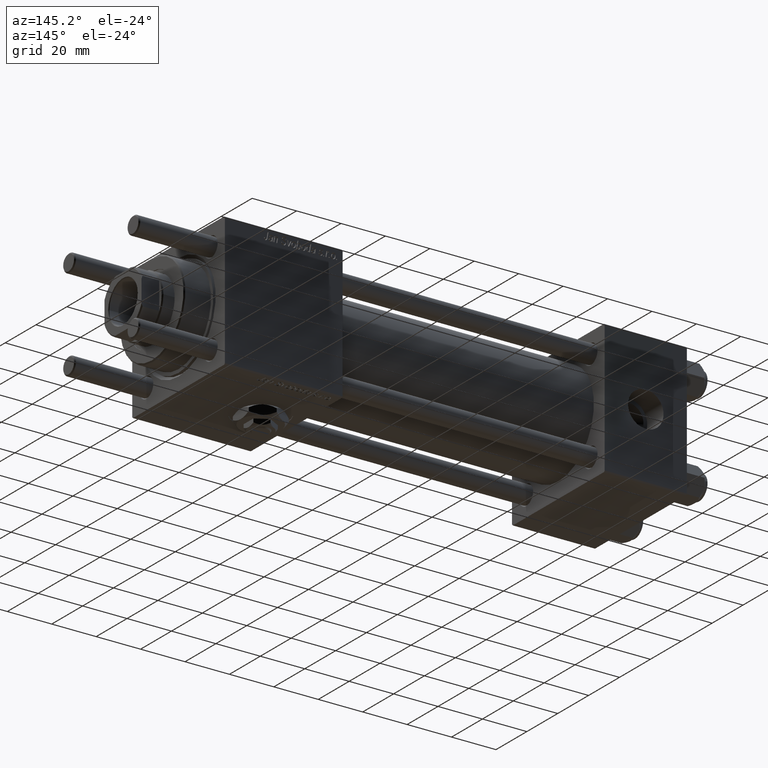
[diagram: clean part render]
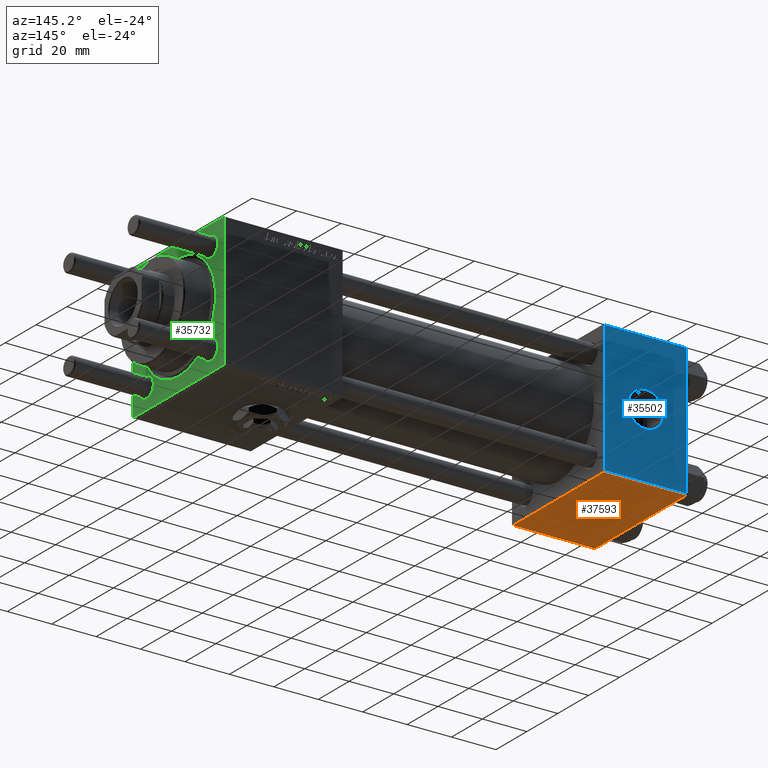
[diagram: same view with three faces highlighted in distinct colors, each labeled with its STEP entity id]
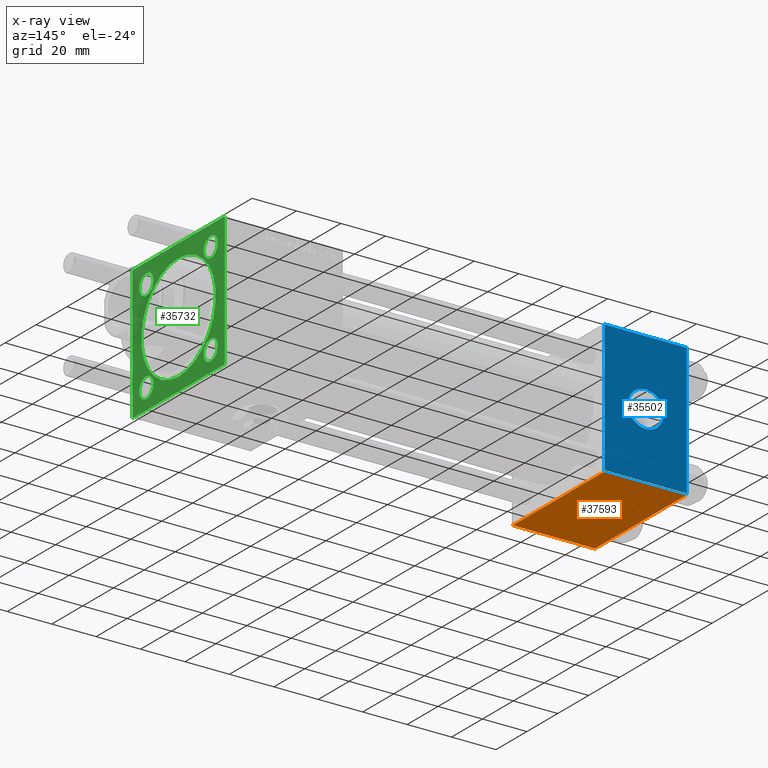
[diagram: x-ray of the same camera — body ghosted, the three highlighted faces saturated]
A machine part, auxiliary view with three faces highlighted in distinct colors.
The next image is the same camera in x-ray (body ghosted, the three faces saturated) — at least one of them is partly hidden behind the body in this view.
Their STEP definitions:

[orange] entity #37593 — the highlighted planar face has unit normal (0, 0, -1).
#434 = VECTOR ( 'NONE', #30476, 1000.000000000000000 ) ;
#3581 = CARTESIAN_POINT ( 'NONE',  ( 0.000000000000000000, -29.50000000000000000, -30.00000000000000711 ) ) ;
#4893 = EDGE_CURVE ( 'NONE', #53085, #26064, #10908, .T. ) ;
#5900 = EDGE_CURVE ( 'NONE', #34262, #53085, #8115, .T. ) ;
#6168 = CARTESIAN_POINT ( 'NONE',  ( 37.00000000000000000, 29.99999999999999289, -30.00000000000000000 ) ) ;
#8115 = LINE ( 'NONE', #39812, #40509 ) ;
#10190 = VECTOR ( 'NONE', #41424, 1000.000000000000000 ) ;
#10383 = ORIENTED_EDGE ( 'NONE', *, *, #49552, .T. ) ;
#10908 = LINE ( 'NONE', #6168, #10190 ) ;
#11958 = CARTESIAN_POINT ( 'NONE',  ( 37.00000000000000000, 29.99999999999999289, -30.00000000000000000 ) ) ;
#12411 = CARTESIAN_POINT ( 'NONE',  ( 0.000000000000000000, 29.99999999999999289, -30.00000000000000000 ) ) ;
#13536 = VERTEX_POINT ( 'NONE', #3581 ) ;
#14063 = CARTESIAN_POINT ( 'NONE',  ( 37.00000000000000000, -29.50000000000000000, -30.00000000000000711 ) ) ;
#16708 = DIRECTION ( 'NONE',  ( 0.000000000000000000, 1.000000000000000000, 1.156482317317871725E-16 ) ) ;
#20952 = CARTESIAN_POINT ( 'NONE',  ( 0.000000000000000000, 29.49999999999997868, -30.00000000000000000 ) ) ;
#26064 = VERTEX_POINT ( 'NONE', #14063 ) ;
#26327 = LINE ( 'NONE', #12411, #434 ) ;
#29336 = ORIENTED_EDGE ( 'NONE', *, *, #4893, .T. ) ;
#29658 = DIRECTION ( 'NONE',  ( -1.000000000000000000, 0.000000000000000000, 0.000000000000000000 ) ) ;
#30389 = EDGE_LOOP ( 'NONE', ( #55534, #46108, #29336, #10383 ) ) ;
#30476 = DIRECTION ( 'NONE',  ( 0.000000000000000000, -1.000000000000000000, -1.156482317317871725E-16 ) ) ;
#34104 = CARTESIAN_POINT ( 'NONE',  ( 0.000000000000000000, -29.50000000000001066, -30.00000000000000711 ) ) ;
#34262 = VERTEX_POINT ( 'NONE', #20952 ) ;
#36609 = CARTESIAN_POINT ( 'NONE',  ( 37.00000000000000000, 29.49999999999997868, -30.00000000000000000 ) ) ;
#37593 = ADVANCED_FACE ( 'NONE', ( #46929 ), #52532, .T. ) ;
#38954 = DIRECTION ( 'NONE',  ( 1.000000000000000000, 0.000000000000000000, 0.000000000000000000 ) ) ;
#39812 = CARTESIAN_POINT ( 'NONE',  ( 37.00000000000000000, 29.49999999999997868, -30.00000000000000000 ) ) ;
#40232 = VECTOR ( 'NONE', #29658, 1000.000000000000000 ) ;
#40509 = VECTOR ( 'NONE', #38954, 1000.000000000000000 ) ;
#41424 = DIRECTION ( 'NONE',  ( 0.000000000000000000, -1.000000000000000000, -1.156482317317871725E-16 ) ) ;
#42096 = LINE ( 'NONE', #34104, #40232 ) ;
#43078 = DIRECTION ( 'NONE',  ( 0.000000000000000000, 1.156482317317871725E-16, -1.000000000000000000 ) ) ;
#46108 = ORIENTED_EDGE ( 'NONE', *, *, #5900, .T. ) ;
#46929 = FACE_OUTER_BOUND ( 'NONE', #30389, .T. ) ;
#48022 = EDGE_CURVE ( 'NONE', #34262, #13536, #26327, .T. ) ;
#49552 = EDGE_CURVE ( 'NONE', #26064, #13536, #42096, .T. ) ;
#52532 = PLANE ( 'NONE',  #54153 ) ;
#53085 = VERTEX_POINT ( 'NONE', #36609 ) ;
#54153 = AXIS2_PLACEMENT_3D ( 'NONE', #11958, #43078, #16708 ) ;
#55534 = ORIENTED_EDGE ( 'NONE', *, *, #48022, .F. ) ;

[blue] entity #35502 — the highlighted planar face has unit normal (0, 1, 0).
#420 = CARTESIAN_POINT ( 'NONE',  ( 0.000000000000000000, 29.99999999999999289, 29.50000000000000000 ) ) ;
#516 = VECTOR ( 'NONE', #57181, 1000.000000000000000 ) ;
#2246 = VERTEX_POINT ( 'NONE', #420 ) ;
#2696 = CARTESIAN_POINT ( 'NONE',  ( 0.000000000000000000, 29.99999999999999289, 30.00000000000000000 ) ) ;
#3664 = CARTESIAN_POINT ( 'NONE',  ( 18.50000000000000000, 29.99999999999999289, 0.000000000000000000 ) ) ;
#4757 = DIRECTION ( 'NONE',  ( -0.000000000000000000, 1.000000000000000000, 0.000000000000000000 ) ) ;
#5046 = CARTESIAN_POINT ( 'NONE',  ( 0.000000000000000000, 29.99999999999999289, -29.50000000000000000 ) ) ;
#7288 = CARTESIAN_POINT ( 'NONE',  ( 37.00000000000000000, 29.99999999999999289, -29.50000000000000000 ) ) ;
#7443 = EDGE_CURVE ( 'NONE', #2246, #18409, #38537, .T. ) ;
#8102 = CIRCLE ( 'NONE', #40286, 8.000000000000001776 ) ;
#8243 = CARTESIAN_POINT ( 'NONE',  ( 37.00000000000000000, 29.99999999999999289, -29.50000000000000000 ) ) ;
#8281 = CARTESIAN_POINT ( 'NONE',  ( 37.00000000000000000, 29.99999999999999289, 30.00000000000000000 ) ) ;
#8384 = DIRECTION ( 'NONE',  ( 0.000000000000000000, 1.000000000000000000, 0.000000000000000000 ) ) ;
#8902 = FACE_BOUND ( 'NONE', #25651, .T. ) ;
#9486 = FACE_OUTER_BOUND ( 'NONE', #45436, .T. ) ;
#10067 = CARTESIAN_POINT ( 'NONE',  ( 37.00000000000000000, 29.99999999999999289, 30.00000000000000000 ) ) ;
#10538 = DIRECTION ( 'NONE',  ( 0.000000000000000000, 0.000000000000000000, 1.000000000000000000 ) ) ;
#12451 = DIRECTION ( 'NONE',  ( 0.000000000000000000, 0.000000000000000000, -1.000000000000000000 ) ) ;
#13021 = ORIENTED_EDGE ( 'NONE', *, *, #49631, .T. ) ;
#15436 = VERTEX_POINT ( 'NONE', #8243 ) ;
#16644 = VECTOR ( 'NONE', #21486, 1000.000000000000000 ) ;
#16763 = DIRECTION ( 'NONE',  ( 1.000000000000000000, 0.000000000000000000, 0.000000000000000000 ) ) ;
#18349 = CARTESIAN_POINT ( 'NONE',  ( 18.50000000000000000, 29.99999999999999289, 8.000000000000001776 ) ) ;
#18409 = VERTEX_POINT ( 'NONE', #5046 ) ;
#21486 = DIRECTION ( 'NONE',  ( -1.000000000000000000, 0.000000000000000000, 0.000000000000000000 ) ) ;
#22184 = CARTESIAN_POINT ( 'NONE',  ( 18.50000000000000000, 29.99999999999999289, -8.000000000000001776 ) ) ;
#22835 = VERTEX_POINT ( 'NONE', #22184 ) ;
#24186 = CARTESIAN_POINT ( 'NONE',  ( 18.50000000000000000, 29.99999999999999289, 0.000000000000000000 ) ) ;
#25651 = EDGE_LOOP ( 'NONE', ( #55987, #26077 ) ) ;
#26077 = ORIENTED_EDGE ( 'NONE', *, *, #51687, .F. ) ;
#26560 = VECTOR ( 'NONE', #16763, 1000.000000000000000 ) ;
#30630 = DIRECTION ( 'NONE',  ( 0.000000000000000000, 0.000000000000000000, 1.000000000000000000 ) ) ;
#31238 = EDGE_CURVE ( 'NONE', #2246, #51775, #39261, .T. ) ;
#32594 = PLANE ( 'NONE',  #48423 ) ;
#34546 = LINE ( 'NONE', #7288, #16644 ) ;
#35502 = ADVANCED_FACE ( 'NONE', ( #8902, #9486 ), #32594, .T. ) ;
#35703 = ORIENTED_EDGE ( 'NONE', *, *, #7443, .F. ) ;
#37154 = VERTEX_POINT ( 'NONE', #18349 ) ;
#38209 = CARTESIAN_POINT ( 'NONE',  ( 37.00000000000000000, 29.99999999999999289, 29.50000000000000000 ) ) ;
#38537 = LINE ( 'NONE', #2696, #47203 ) ;
#39261 = LINE ( 'NONE', #57321, #26560 ) ;
#39686 = LINE ( 'NONE', #8281, #516 ) ;
#40286 = AXIS2_PLACEMENT_3D ( 'NONE', #3664, #8384, #30630 ) ;
#45436 = EDGE_LOOP ( 'NONE', ( #13021, #46152, #35703, #54092 ) ) ;
#45633 = DIRECTION ( 'NONE',  ( 0.000000000000000000, -0.000000000000000000, 1.000000000000000000 ) ) ;
#46038 = AXIS2_PLACEMENT_3D ( 'NONE', #24186, #51113, #10538 ) ;
#46152 = ORIENTED_EDGE ( 'NONE', *, *, #50211, .T. ) ;
#47203 = VECTOR ( 'NONE', #12451, 1000.000000000000000 ) ;
#48423 = AXIS2_PLACEMENT_3D ( 'NONE', #10067, #4757, #45633 ) ;
#49631 = EDGE_CURVE ( 'NONE', #51775, #15436, #39686, .T. ) ;
#50211 = EDGE_CURVE ( 'NONE', #15436, #18409, #34546, .T. ) ;
#51113 = DIRECTION ( 'NONE',  ( 0.000000000000000000, 1.000000000000000000, 0.000000000000000000 ) ) ;
#51687 = EDGE_CURVE ( 'NONE', #22835, #37154, #8102, .T. ) ;
#51775 = VERTEX_POINT ( 'NONE', #38209 ) ;
#54092 = ORIENTED_EDGE ( 'NONE', *, *, #31238, .T. ) ;
#54978 = EDGE_CURVE ( 'NONE', #37154, #22835, #57413, .T. ) ;
#55987 = ORIENTED_EDGE ( 'NONE', *, *, #54978, .F. ) ;
#57181 = DIRECTION ( 'NONE',  ( 0.000000000000000000, 0.000000000000000000, -1.000000000000000000 ) ) ;
#57321 = CARTESIAN_POINT ( 'NONE',  ( 37.00000000000000000, 29.99999999999999289, 29.50000000000000000 ) ) ;
#57413 = CIRCLE ( 'NONE', #46038, 8.000000000000001776 ) ;

[green] entity #35732 — the highlighted planar face has unit normal (-1, 0, 0).
#165 = DIRECTION ( 'NONE',  ( 0.000000000000000000, 0.000000000000000000, 1.000000000000000000 ) ) ;
#723 = CARTESIAN_POINT ( 'NONE',  ( 208.0000000000000000, -29.50000000000002487, 29.99999999999999289 ) ) ;
#1127 = DIRECTION ( 'NONE',  ( -0.000000000000000000, 0.000000000000000000, 1.000000000000000000 ) ) ;
#1376 = EDGE_LOOP ( 'NONE', ( #56399, #43650 ) ) ;
#2663 = DIRECTION ( 'NONE',  ( -1.000000000000000000, 0.000000000000000000, -0.000000000000000000 ) ) ;
#3550 = ORIENTED_EDGE ( 'NONE', *, *, #18855, .T. ) ;
#3845 = CARTESIAN_POINT ( 'NONE',  ( 208.0000000000000000, -20.84999999999999076, 20.85000000000000497 ) ) ;
#4142 = AXIS2_PLACEMENT_3D ( 'NONE', #32575, #33467, #28137 ) ;
#4244 = DIRECTION ( 'NONE',  ( -0.000000000000000000, -0.7071067811865474617, -0.7071067811865474617 ) ) ;
#4543 = CARTESIAN_POINT ( 'NONE',  ( 208.0000000000000000, 30.00000000000000000, -29.99999999999999289 ) ) ;
#4663 = DIRECTION ( 'NONE',  ( -1.000000000000000000, 0.000000000000000000, -0.000000000000000000 ) ) ;
#5628 = VECTOR ( 'NONE', #46491, 1000.000000000000114 ) ;
#5960 = VECTOR ( 'NONE', #51638, 1000.000000000000000 ) ;
#5964 = ORIENTED_EDGE ( 'NONE', *, *, #19663, .T. ) ;
#6772 = CIRCLE ( 'NONE', #49283, 24.00000000000002487 ) ;
#6805 = DIRECTION ( 'NONE',  ( -1.000000000000000000, 0.000000000000000000, -0.000000000000000000 ) ) ;
#6896 = DIRECTION ( 'NONE',  ( 0.000000000000000000, 0.000000000000000000, -1.000000000000000000 ) ) ;
#7528 = EDGE_CURVE ( 'NONE', #8577, #55214, #32987, .T. ) ;
#8577 = VERTEX_POINT ( 'NONE', #39810 ) ;
#8795 = ORIENTED_EDGE ( 'NONE', *, *, #15336, .T. ) ;
#8818 = CIRCLE ( 'NONE', #4142, 4.500000000000003553 ) ;
#10066 = EDGE_LOOP ( 'NONE', ( #5964, #28938 ) ) ;
#10954 = DIRECTION ( 'NONE',  ( 0.000000000000000000, 0.000000000000000000, 1.000000000000000000 ) ) ;
#12127 = CARTESIAN_POINT ( 'NONE',  ( 208.0000000000000000, 0.000000000000000000, 0.000000000000000000 ) ) ;
#12422 = VERTEX_POINT ( 'NONE', #34979 ) ;
#12426 = CARTESIAN_POINT ( 'NONE',  ( 208.0000000000000000, -30.00000000000000000, 29.99999999999999289 ) ) ;
#12933 = VERTEX_POINT ( 'NONE', #46930 ) ;
#13418 = DIRECTION ( 'NONE',  ( 0.000000000000000000, -1.000000000000000000, -1.156482317317871478E-16 ) ) ;
#13509 = CARTESIAN_POINT ( 'NONE',  ( 208.0000000000000000, -20.84999999999999076, -25.35000000000000853 ) ) ;
#13723 = LINE ( 'NONE', #53992, #15873 ) ;
#14185 = VERTEX_POINT ( 'NONE', #42723 ) ;
#14215 = AXIS2_PLACEMENT_3D ( 'NONE', #46186, #14499, #54780 ) ;
#14386 = DIRECTION ( 'NONE',  ( 0.000000000000000000, 0.7071067811865474617, -0.7071067811865474617 ) ) ;
#14499 = DIRECTION ( 'NONE',  ( -1.000000000000000000, 0.000000000000000000, -0.000000000000000000 ) ) ;
#14754 = FACE_BOUND ( 'NONE', #38107, .T. ) ;
#15115 = CARTESIAN_POINT ( 'NONE',  ( 208.0000000000000000, -20.84999999999999076, -20.85000000000000497 ) ) ;
#15169 = EDGE_CURVE ( 'NONE', #34388, #55337, #23634, .T. ) ;
#15336 = EDGE_CURVE ( 'NONE', #55337, #34388, #31194, .T. ) ;
#15873 = VECTOR ( 'NONE', #4244, 1000.000000000000114 ) ;
#16451 = FACE_BOUND ( 'NONE', #10066, .T. ) ;
#16555 = EDGE_CURVE ( 'NONE', #51103, #55141, #36908, .T. ) ;
#16811 = EDGE_CURVE ( 'NONE', #45069, #52674, #32198, .T. ) ;
#18480 = AXIS2_PLACEMENT_3D ( 'NONE', #30023, #25882, #56967 ) ;
#18855 = EDGE_CURVE ( 'NONE', #56944, #31825, #54957, .T. ) ;
#19106 = CARTESIAN_POINT ( 'NONE',  ( 208.0000000000000000, 29.50000000000000000, -29.99999999999999289 ) ) ;
#19488 = FACE_BOUND ( 'NONE', #32610, .T. ) ;
#19663 = EDGE_CURVE ( 'NONE', #53945, #46261, #6772, .T. ) ;
#20831 = ORIENTED_EDGE ( 'NONE', *, *, #38526, .T. ) ;
#21009 = CARTESIAN_POINT ( 'NONE',  ( 208.0000000000000000, 20.84999999999999787, -25.35000000000000497 ) ) ;
#21598 = CARTESIAN_POINT ( 'NONE',  ( 208.0000000000000000, 0.000000000000000000, -24.00000000000002487 ) ) ;
#22026 = AXIS2_PLACEMENT_3D ( 'NONE', #40434, #58489, #165 ) ;
#22272 = EDGE_CURVE ( 'NONE', #45069, #31825, #31499, .T. ) ;
#23028 = CARTESIAN_POINT ( 'NONE',  ( 208.0000000000000000, 30.00000000000000000, -29.49999999999999289 ) ) ;
#23569 = CARTESIAN_POINT ( 'NONE',  ( 208.0000000000000000, -29.50000000000002487, -30.00000000000000000 ) ) ;
#23634 = CIRCLE ( 'NONE', #52969, 4.500000000000003553 ) ;
#23641 = FACE_BOUND ( 'NONE', #1376, .T. ) ;
#23860 = AXIS2_PLACEMENT_3D ( 'NONE', #38951, #28673, #1127 ) ;
#23959 = EDGE_LOOP ( 'NONE', ( #30743, #44265 ) ) ;
#24393 = LINE ( 'NONE', #12426, #40366 ) ;
#24407 = VERTEX_POINT ( 'NONE', #41217 ) ;
#24586 = CARTESIAN_POINT ( 'NONE',  ( 208.0000000000000000, 29.50000000000002487, 30.00000000000000000 ) ) ;
#25462 = EDGE_CURVE ( 'NONE', #12422, #52674, #51347, .T. ) ;
#25882 = DIRECTION ( 'NONE',  ( -1.000000000000000000, 0.000000000000000000, -0.000000000000000000 ) ) ;
#26087 = CARTESIAN_POINT ( 'NONE',  ( 208.0000000000000000, 30.00000000000000000, 30.00000000000000000 ) ) ;
#27865 = CIRCLE ( 'NONE', #32591, 4.500000000000003553 ) ;
#28137 = DIRECTION ( 'NONE',  ( 0.000000000000000000, 0.000000000000000000, 1.000000000000000000 ) ) ;
#28673 = DIRECTION ( 'NONE',  ( -1.000000000000000000, 0.000000000000000000, -0.000000000000000000 ) ) ;
#28938 = ORIENTED_EDGE ( 'NONE', *, *, #51918, .T. ) ;
#29316 = EDGE_CURVE ( 'NONE', #12422, #14185, #37897, .T. ) ;
#29428 = ORIENTED_EDGE ( 'NONE', *, *, #25462, .F. ) ;
#29855 = DIRECTION ( 'NONE',  ( 0.000000000000000000, 0.000000000000000000, 1.000000000000000000 ) ) ;
#30023 = CARTESIAN_POINT ( 'NONE',  ( 208.0000000000000000, 20.84999999999999787, 20.85000000000000142 ) ) ;
#30165 = AXIS2_PLACEMENT_3D ( 'NONE', #3845, #32095, #36703 ) ;
#30743 = ORIENTED_EDGE ( 'NONE', *, *, #16555, .T. ) ;
#30780 = ORIENTED_EDGE ( 'NONE', *, *, #57436, .T. ) ;
#31194 = CIRCLE ( 'NONE', #42553, 4.500000000000003553 ) ;
#31234 = ORIENTED_EDGE ( 'NONE', *, *, #16811, .T. ) ;
#31344 = VERTEX_POINT ( 'NONE', #723 ) ;
#31355 = ORIENTED_EDGE ( 'NONE', *, *, #38202, .T. ) ;
#31499 = LINE ( 'NONE', #4543, #50345 ) ;
#31825 = VERTEX_POINT ( 'NONE', #51568 ) ;
#32095 = DIRECTION ( 'NONE',  ( -1.000000000000000000, 0.000000000000000000, -0.000000000000000000 ) ) ;
#32183 = ORIENTED_EDGE ( 'NONE', *, *, #22272, .F. ) ;
#32198 = LINE ( 'NONE', #23028, #50182 ) ;
#32211 = VECTOR ( 'NONE', #14386, 1000.000000000000114 ) ;
#32575 = CARTESIAN_POINT ( 'NONE',  ( 208.0000000000000000, 20.84999999999999787, -20.85000000000000142 ) ) ;
#32591 = AXIS2_PLACEMENT_3D ( 'NONE', #46124, #4663, #41681 ) ;
#32610 = EDGE_LOOP ( 'NONE', ( #35677, #8795 ) ) ;
#32987 = CIRCLE ( 'NONE', #30165, 4.500000000000003553 ) ;
#33002 = ORIENTED_EDGE ( 'NONE', *, *, #29316, .T. ) ;
#33467 = DIRECTION ( 'NONE',  ( -1.000000000000000000, 0.000000000000000000, -0.000000000000000000 ) ) ;
#33680 = ORIENTED_EDGE ( 'NONE', *, *, #53815, .T. ) ;
#34388 = VERTEX_POINT ( 'NONE', #13509 ) ;
#34712 = DIRECTION ( 'NONE',  ( -1.000000000000000000, 0.000000000000000000, -0.000000000000000000 ) ) ;
#34979 = CARTESIAN_POINT ( 'NONE',  ( 208.0000000000000000, 30.00000000000000000, 29.50000000000002487 ) ) ;
#35065 = LINE ( 'NONE', #49546, #49471 ) ;
#35501 = DIRECTION ( 'NONE',  ( 0.000000000000000000, 0.000000000000000000, 1.000000000000000000 ) ) ;
#35559 = CIRCLE ( 'NONE', #43146, 24.00000000000002487 ) ;
#35677 = ORIENTED_EDGE ( 'NONE', *, *, #15169, .T. ) ;
#35732 = ADVANCED_FACE ( 'NONE', ( #19488, #55322, #14754, #23641, #16451, #41702 ), #52563, .F. ) ;
#36703 = DIRECTION ( 'NONE',  ( 0.000000000000000000, 0.000000000000000000, 1.000000000000000000 ) ) ;
#36908 = CIRCLE ( 'NONE', #14215, 4.500000000000003553 ) ;
#37897 = LINE ( 'NONE', #24586, #5628 ) ;
#38107 = EDGE_LOOP ( 'NONE', ( #51173, #31355 ) ) ;
#38202 = EDGE_CURVE ( 'NONE', #12933, #24407, #44743, .T. ) ;
#38526 = EDGE_CURVE ( 'NONE', #14185, #31344, #35065, .T. ) ;
#38951 = CARTESIAN_POINT ( 'NONE',  ( 208.0000000000000000, 0.000000000000000000, 0.000000000000000000 ) ) ;
#39810 = CARTESIAN_POINT ( 'NONE',  ( 208.0000000000000000, -20.84999999999999076, 25.35000000000000853 ) ) ;
#40366 = VECTOR ( 'NONE', #6896, 1000.000000000000000 ) ;
#40434 = CARTESIAN_POINT ( 'NONE',  ( 208.0000000000000000, 20.84999999999999787, 20.85000000000000142 ) ) ;
#40685 = DIRECTION ( 'NONE',  ( 0.000000000000000000, -1.000000000000000000, -1.156482317317871478E-16 ) ) ;
#40705 = CARTESIAN_POINT ( 'NONE',  ( 208.0000000000000000, 20.84999999999999787, -16.34999999999999787 ) ) ;
#41217 = CARTESIAN_POINT ( 'NONE',  ( 208.0000000000000000, 20.84999999999999787, 16.34999999999999787 ) ) ;
#41294 = CARTESIAN_POINT ( 'NONE',  ( 208.0000000000000000, -20.84999999999999076, 16.35000000000000142 ) ) ;
#41681 = DIRECTION ( 'NONE',  ( 0.000000000000000000, 0.000000000000000000, 1.000000000000000000 ) ) ;
#41702 = FACE_OUTER_BOUND ( 'NONE', #54686, .T. ) ;
#42553 = AXIS2_PLACEMENT_3D ( 'NONE', #15115, #6805, #10954 ) ;
#42723 = CARTESIAN_POINT ( 'NONE',  ( 208.0000000000000000, 29.50000000000002487, 30.00000000000000000 ) ) ;
#43146 = AXIS2_PLACEMENT_3D ( 'NONE', #12127, #2663, #35501 ) ;
#43597 = DIRECTION ( 'NONE',  ( 0.000000000000000000, 0.000000000000000000, 1.000000000000000000 ) ) ;
#43650 = ORIENTED_EDGE ( 'NONE', *, *, #7528, .T. ) ;
#44025 = CIRCLE ( 'NONE', #18480, 4.500000000000003553 ) ;
#44214 = CARTESIAN_POINT ( 'NONE',  ( 208.0000000000000000, -20.84999999999999076, -16.35000000000000142 ) ) ;
#44265 = ORIENTED_EDGE ( 'NONE', *, *, #44487, .T. ) ;
#44487 = EDGE_CURVE ( 'NONE', #55141, #51103, #8818, .T. ) ;
#44743 = CIRCLE ( 'NONE', #22026, 4.500000000000003553 ) ;
#45069 = VERTEX_POINT ( 'NONE', #19106 ) ;
#45505 = VERTEX_POINT ( 'NONE', #47513 ) ;
#45527 = DIRECTION ( 'NONE',  ( -0.000000000000000000, 0.7071067811865474617, 0.7071067811865474617 ) ) ;
#46124 = CARTESIAN_POINT ( 'NONE',  ( 208.0000000000000000, -20.84999999999999076, 20.85000000000000497 ) ) ;
#46186 = CARTESIAN_POINT ( 'NONE',  ( 208.0000000000000000, 20.84999999999999787, -20.85000000000000142 ) ) ;
#46261 = VERTEX_POINT ( 'NONE', #51363 ) ;
#46491 = DIRECTION ( 'NONE',  ( 0.000000000000000000, -0.7071067811865474617, 0.7071067811865474617 ) ) ;
#46930 = CARTESIAN_POINT ( 'NONE',  ( 208.0000000000000000, 20.84999999999999787, 25.35000000000000497 ) ) ;
#47013 = EDGE_CURVE ( 'NONE', #55214, #8577, #27865, .T. ) ;
#47513 = CARTESIAN_POINT ( 'NONE',  ( 208.0000000000000000, -30.00000000000000000, 29.50000000000001776 ) ) ;
#49283 = AXIS2_PLACEMENT_3D ( 'NONE', #53212, #57373, #29855 ) ;
#49471 = VECTOR ( 'NONE', #13418, 1000.000000000000000 ) ;
#49546 = CARTESIAN_POINT ( 'NONE',  ( 208.0000000000000000, 30.00000000000000000, 30.00000000000000000 ) ) ;
#50182 = VECTOR ( 'NONE', #45527, 1000.000000000000114 ) ;
#50345 = VECTOR ( 'NONE', #40685, 1000.000000000000000 ) ;
#50428 = EDGE_CURVE ( 'NONE', #24407, #12933, #44025, .T. ) ;
#51103 = VERTEX_POINT ( 'NONE', #21009 ) ;
#51173 = ORIENTED_EDGE ( 'NONE', *, *, #50428, .T. ) ;
#51347 = LINE ( 'NONE', #26087, #5960 ) ;
#51363 = CARTESIAN_POINT ( 'NONE',  ( 208.0000000000000000, 2.939152317953650655E-15, 24.00000000000002487 ) ) ;
#51568 = CARTESIAN_POINT ( 'NONE',  ( 208.0000000000000000, -29.50000000000002487, -30.00000000000000000 ) ) ;
#51638 = DIRECTION ( 'NONE',  ( 0.000000000000000000, 0.000000000000000000, -1.000000000000000000 ) ) ;
#51918 = EDGE_CURVE ( 'NONE', #46261, #53945, #35559, .T. ) ;
#52563 = PLANE ( 'NONE',  #23860 ) ;
#52674 = VERTEX_POINT ( 'NONE', #56065 ) ;
#52969 = AXIS2_PLACEMENT_3D ( 'NONE', #56919, #34712, #43597 ) ;
#53212 = CARTESIAN_POINT ( 'NONE',  ( 208.0000000000000000, 0.000000000000000000, 0.000000000000000000 ) ) ;
#53815 = EDGE_CURVE ( 'NONE', #45505, #56944, #24393, .T. ) ;
#53945 = VERTEX_POINT ( 'NONE', #21598 ) ;
#53992 = CARTESIAN_POINT ( 'NONE',  ( 208.0000000000000000, -30.00000000000000000, 29.50000000000001776 ) ) ;
#54686 = EDGE_LOOP ( 'NONE', ( #33680, #3550, #32183, #31234, #29428, #33002, #20831, #30780 ) ) ;
#54780 = DIRECTION ( 'NONE',  ( 0.000000000000000000, 0.000000000000000000, 1.000000000000000000 ) ) ;
#54957 = LINE ( 'NONE', #23569, #32211 ) ;
#55141 = VERTEX_POINT ( 'NONE', #40705 ) ;
#55214 = VERTEX_POINT ( 'NONE', #41294 ) ;
#55322 = FACE_BOUND ( 'NONE', #23959, .T. ) ;
#55337 = VERTEX_POINT ( 'NONE', #44214 ) ;
#56065 = CARTESIAN_POINT ( 'NONE',  ( 208.0000000000000000, 30.00000000000000000, -29.49999999999997868 ) ) ;
#56399 = ORIENTED_EDGE ( 'NONE', *, *, #47013, .T. ) ;
#56919 = CARTESIAN_POINT ( 'NONE',  ( 208.0000000000000000, -20.84999999999999076, -20.85000000000000497 ) ) ;
#56944 = VERTEX_POINT ( 'NONE', #57924 ) ;
#56967 = DIRECTION ( 'NONE',  ( 0.000000000000000000, 0.000000000000000000, 1.000000000000000000 ) ) ;
#57373 = DIRECTION ( 'NONE',  ( -1.000000000000000000, 0.000000000000000000, -0.000000000000000000 ) ) ;
#57436 = EDGE_CURVE ( 'NONE', #31344, #45505, #13723, .T. ) ;
#57924 = CARTESIAN_POINT ( 'NONE',  ( 208.0000000000000000, -30.00000000000000000, -29.50000000000001066 ) ) ;
#58489 = DIRECTION ( 'NONE',  ( -1.000000000000000000, 0.000000000000000000, -0.000000000000000000 ) ) ;